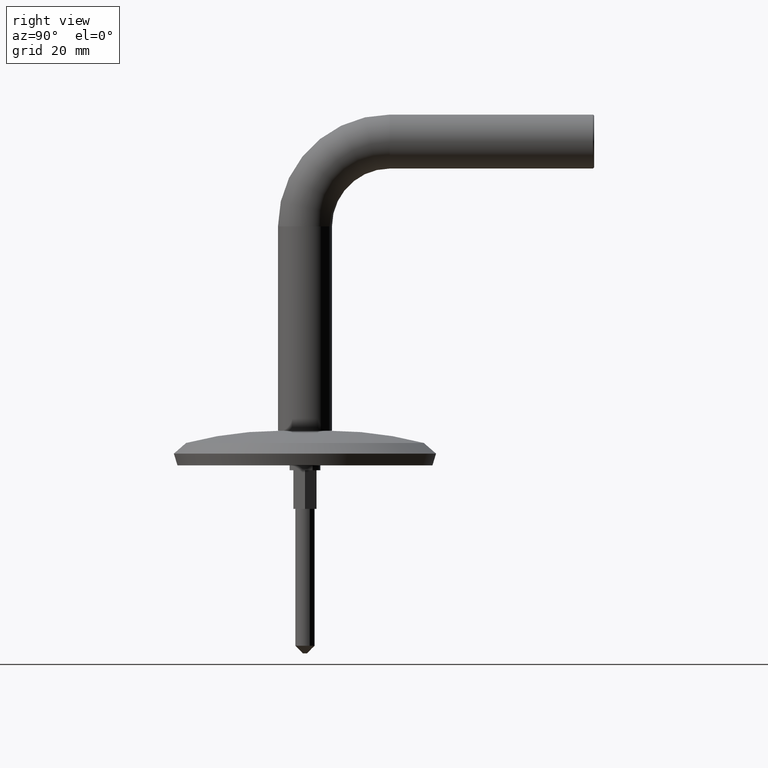
[diagram: clean part render]
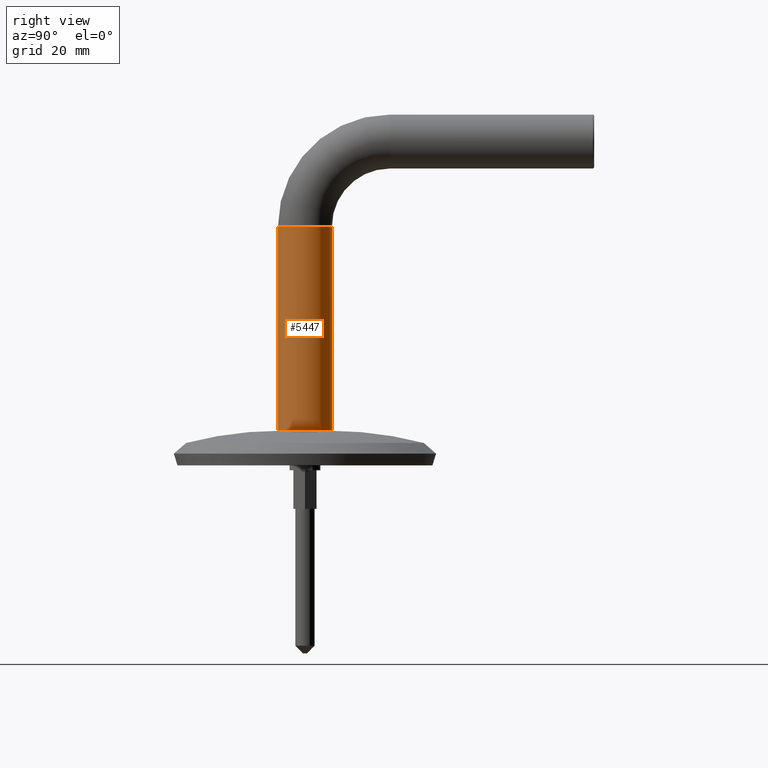
[diagram: same view with one face highlighted and labeled with its STEP entity id]
A machine part, right view. The second image highlights one B-rep face of the part: STEP entity #5447.
In plain terms, the highlighted cylindrical surface (edge-blend (fillet) strip) has radius 7 mm, axis along (0, -0, 1).
Its self-contained STEP definition (entity closure, byte-faithful):
#149 = CARTESIAN_POINT ( 'NONE',  ( 0.000000000000000000, -6.949885547581345981E-15, 53.00000000000000000 ) ) ;
#372 = CARTESIAN_POINT ( 'NONE',  ( 0.000000000000000000, -7.000000000000007994, 53.00000000000000000 ) ) ;
#1336 = DIRECTION ( 'NONE',  ( 0.000000000000000000, -1.311299159921008480E-16, 1.000000000000000000 ) ) ;
#1516 = FACE_OUTER_BOUND ( 'NONE', #12208, .T. ) ;
#1668 = ORIENTED_EDGE ( 'NONE', *, *, #9587, .T. ) ;
#2219 = DIRECTION ( 'NONE',  ( 1.000000000000000000, 0.000000000000000000, 0.000000000000000000 ) ) ;
#2552 = EDGE_CURVE ( 'NONE', #11950, #7206, #6711, .T. ) ;
#2585 = CARTESIAN_POINT ( 'NONE',  ( 8.572527594031474176E-16, 7.000000000000000888, 9.179094119447060841E-16 ) ) ;
#2783 = ORIENTED_EDGE ( 'NONE', *, *, #2552, .F. ) ;
#2982 = DIRECTION ( 'NONE',  ( 1.000000000000000000, 0.000000000000000000, 0.000000000000000000 ) ) ;
#3114 = VERTEX_POINT ( 'NONE', #13431 ) ;
#3148 = CARTESIAN_POINT ( 'NONE',  ( 8.572527594031474176E-16, 6.999999999999993783, 53.00000000000000000 ) ) ;
#3200 = VECTOR ( 'NONE', #1336, 1000.000000000000000 ) ;
#3615 = ORIENTED_EDGE ( 'NONE', *, *, #6212, .F. ) ;
#3898 = AXIS2_PLACEMENT_3D ( 'NONE', #149, #6411, #2219 ) ;
#4454 = ORIENTED_EDGE ( 'NONE', *, *, #10727, .T. ) ;
#5281 = LINE ( 'NONE', #2585, #6288 ) ;
#5447 = ADVANCED_FACE ( 'NONE', ( #1516 ), #6324, .T. ) ;
#6102 = AXIS2_PLACEMENT_3D ( 'NONE', #12665, #11616, #8473 ) ;
#6212 = EDGE_CURVE ( 'NONE', #7206, #13148, #7352, .T. ) ;
#6288 = VECTOR ( 'NONE', #6885, 1000.000000000000000 ) ;
#6324 = CYLINDRICAL_SURFACE ( 'NONE', #6102, 7.000000000000000888 ) ;
#6411 = DIRECTION ( 'NONE',  ( 0.000000000000000000, 0.000000000000000000, 1.000000000000000000 ) ) ;
#6711 = LINE ( 'NONE', #11920, #3200 ) ;
#6804 = CIRCLE ( 'NONE', #8414, 7.000000000000000888 ) ;
#6885 = DIRECTION ( 'NONE',  ( 0.000000000000000000, -1.311299159921008480E-16, 1.000000000000000000 ) ) ;
#6994 = CARTESIAN_POINT ( 'NONE',  ( 0.000000000000000000, 0.000000000000000000, 0.000000000000000000 ) ) ;
#7206 = VERTEX_POINT ( 'NONE', #372 ) ;
#7352 = CIRCLE ( 'NONE', #3898, 7.000000000000000888 ) ;
#8414 = AXIS2_PLACEMENT_3D ( 'NONE', #6994, #12504, #2982 ) ;
#8473 = DIRECTION ( 'NONE',  ( 0.000000000000000000, -1.000000000000000000, -1.311299159921008480E-16 ) ) ;
#9587 = EDGE_CURVE ( 'NONE', #3114, #13148, #5281, .T. ) ;
#10727 = EDGE_CURVE ( 'NONE', #11950, #3114, #6804, .T. ) ;
#11616 = DIRECTION ( 'NONE',  ( 0.000000000000000000, -1.311299159921008480E-16, 1.000000000000000000 ) ) ;
#11704 = CARTESIAN_POINT ( 'NONE',  ( 0.000000000000000000, -7.000000000000000888, 0.000000000000000000 ) ) ;
#11920 = CARTESIAN_POINT ( 'NONE',  ( 0.000000000000000000, -7.000000000000000888, -9.179094119447060841E-16 ) ) ;
#11950 = VERTEX_POINT ( 'NONE', #11704 ) ;
#12208 = EDGE_LOOP ( 'NONE', ( #4454, #1668, #3615, #2783 ) ) ;
#12504 = DIRECTION ( 'NONE',  ( 0.000000000000000000, 0.000000000000000000, 1.000000000000000000 ) ) ;
#12665 = CARTESIAN_POINT ( 'NONE',  ( 0.000000000000000000, 0.000000000000000000, 0.000000000000000000 ) ) ;
#13148 = VERTEX_POINT ( 'NONE', #3148 ) ;
#13431 = CARTESIAN_POINT ( 'NONE',  ( 8.572527594031477134E-16, 7.000000000000000888, 0.000000000000000000 ) ) ;